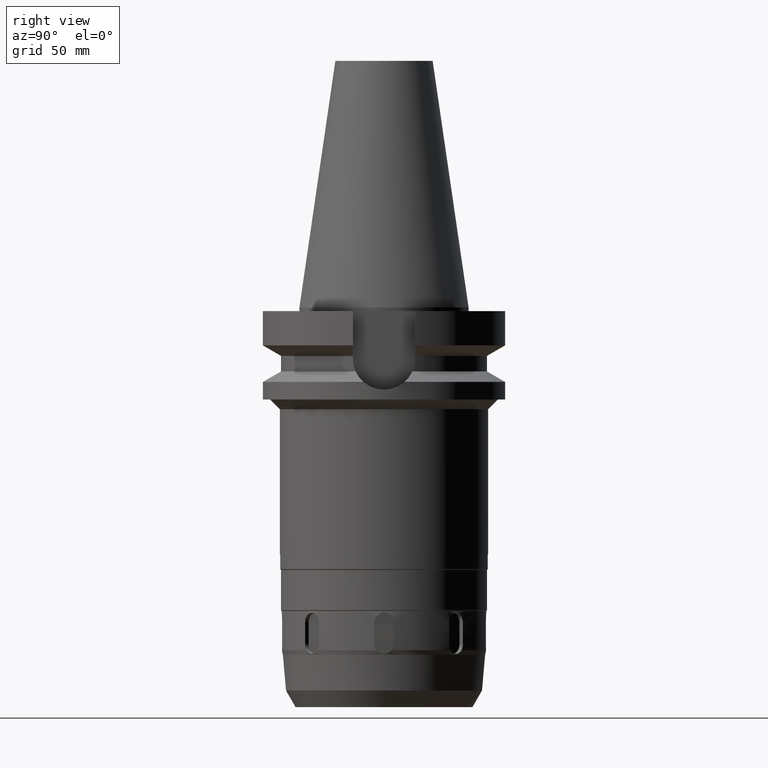
[diagram: clean part render]
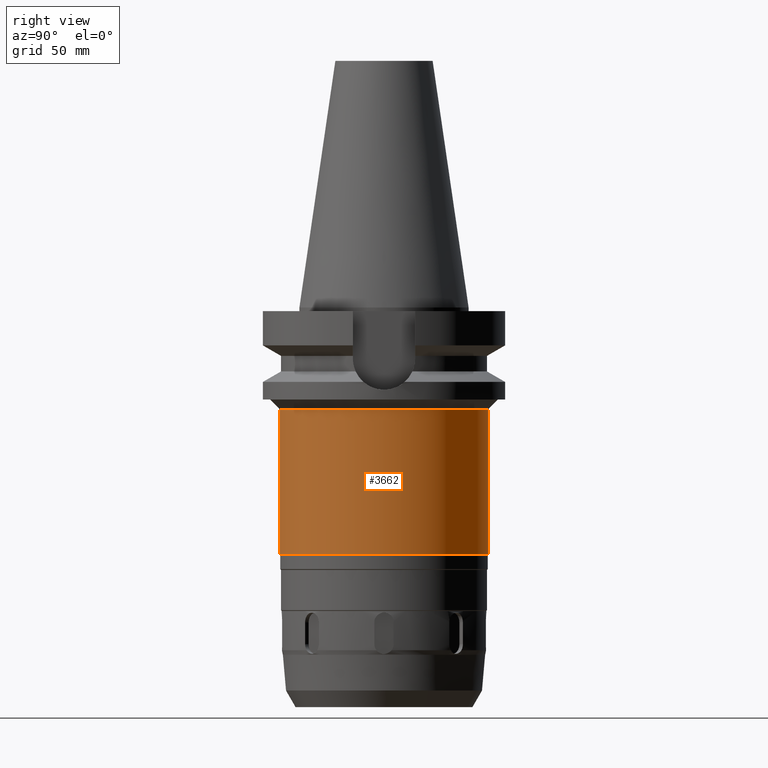
[diagram: same view with one face highlighted and labeled with its STEP entity id]
A machine part, right view. The second image highlights one B-rep face of the part: STEP entity #3662.
In plain terms, the highlighted cylindrical surface (partial cylindrical patch) has radius 43 mm, axis along (0, 0, -1).
Its self-contained STEP definition (entity closure, byte-faithful):
#1326=CARTESIAN_POINT('',(0.E0,2.634705123686E-14,-1.02E2));
#1327=DIRECTION('',(0.E0,0.E0,1.E0));
#1328=DIRECTION('',(0.E0,-1.E0,0.E0));
#1329=AXIS2_PLACEMENT_3D('',#1326,#1327,#1328);
#1358=DIRECTION('',(0.E0,0.E0,-1.E0));
#1359=VECTOR('',#1358,6.E1);
#1360=CARTESIAN_POINT('',(0.E0,4.3E1,-4.2E1));
#1361=LINE('',#1360,#1359);
#1365=DIRECTION('',(0.E0,0.E0,-1.E0));
#1366=VECTOR('',#1365,6.E1);
#1367=CARTESIAN_POINT('',(0.E0,-4.3E1,-4.2E1));
#1368=LINE('',#1367,#1366);
#1394=CARTESIAN_POINT('',(0.E0,0.E0,-4.2E1));
#1395=DIRECTION('',(0.E0,0.E0,-1.E0));
#1396=DIRECTION('',(0.E0,1.E0,0.E0));
#1397=AXIS2_PLACEMENT_3D('',#1394,#1395,#1396);
#2662=CARTESIAN_POINT('',(0.E0,-4.3E1,-1.02E2));
#2663=CARTESIAN_POINT('',(0.E0,4.3E1,-1.02E2));
#2664=VERTEX_POINT('',#2662);
#2665=VERTEX_POINT('',#2663);
#2666=CARTESIAN_POINT('',(0.E0,4.3E1,-4.2E1));
#2667=VERTEX_POINT('',#2666);
#2668=CARTESIAN_POINT('',(0.E0,-4.3E1,-4.2E1));
#2669=VERTEX_POINT('',#2668);
#3648=CARTESIAN_POINT('',(0.E0,2.634705123686E-14,1.1514E2));
#3649=DIRECTION('',(0.E0,0.E0,-1.E0));
#3650=DIRECTION('',(0.E0,-1.E0,0.E0));
#3651=AXIS2_PLACEMENT_3D('',#3648,#3649,#3650);
#3652=CYLINDRICAL_SURFACE('',#3651,4.3E1);
#3654=ORIENTED_EDGE('',*,*,#3653,.T.);
#3655=ORIENTED_EDGE('',*,*,#3637,.F.);
#3657=ORIENTED_EDGE('',*,*,#3656,.F.);
#3659=ORIENTED_EDGE('',*,*,#3658,.F.);
#3660=EDGE_LOOP('',(#3654,#3655,#3657,#3659));
#3661=FACE_OUTER_BOUND('',#3660,.F.);
#1330=CIRCLE('',#1329,4.3E1);
#1398=CIRCLE('',#1397,4.3E1);
#3637=EDGE_CURVE('',#2664,#2665,#1330,.T.);
#3653=EDGE_CURVE('',#2667,#2665,#1361,.T.);
#3656=EDGE_CURVE('',#2669,#2664,#1368,.T.);
#3658=EDGE_CURVE('',#2667,#2669,#1398,.T.);
#3662=ADVANCED_FACE('',(#3661),#3652,.T.);